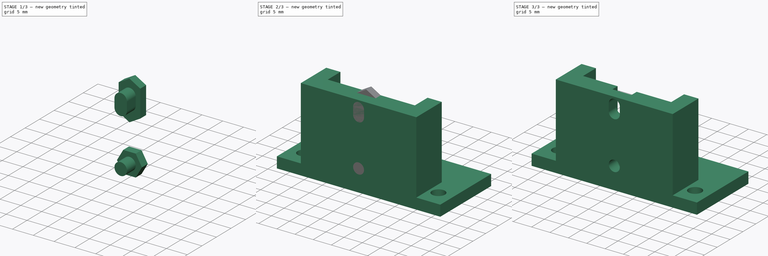
[diagram: build sequence overview — one tinted view per stage of 3, left to right]
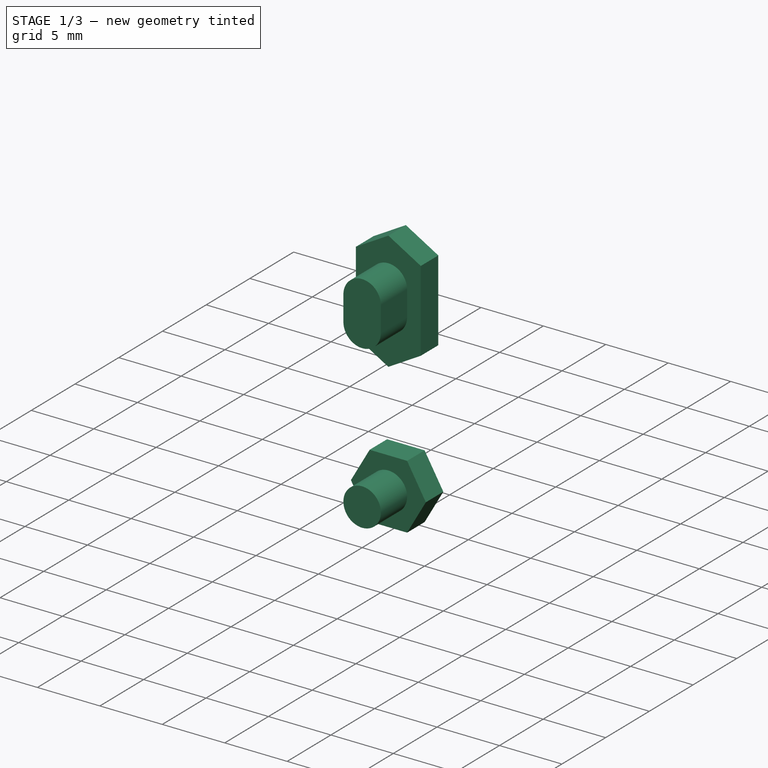
[diagram: stage 1 of 3 — iso view after this stage's code; geometry added in this stage tinted green]
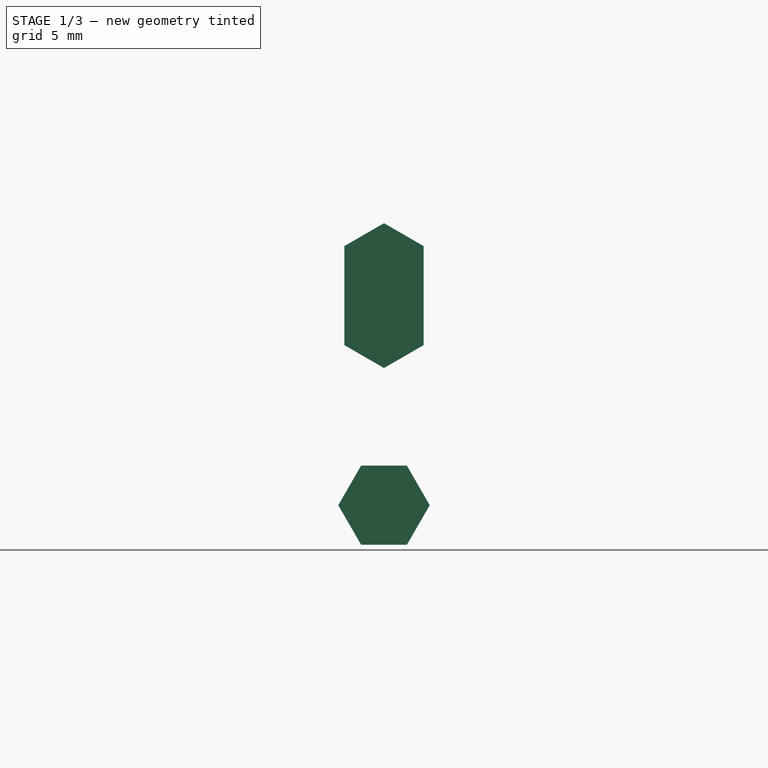
[diagram: stage 1 of 3 — front view after this stage's code; geometry added in this stage tinted green]
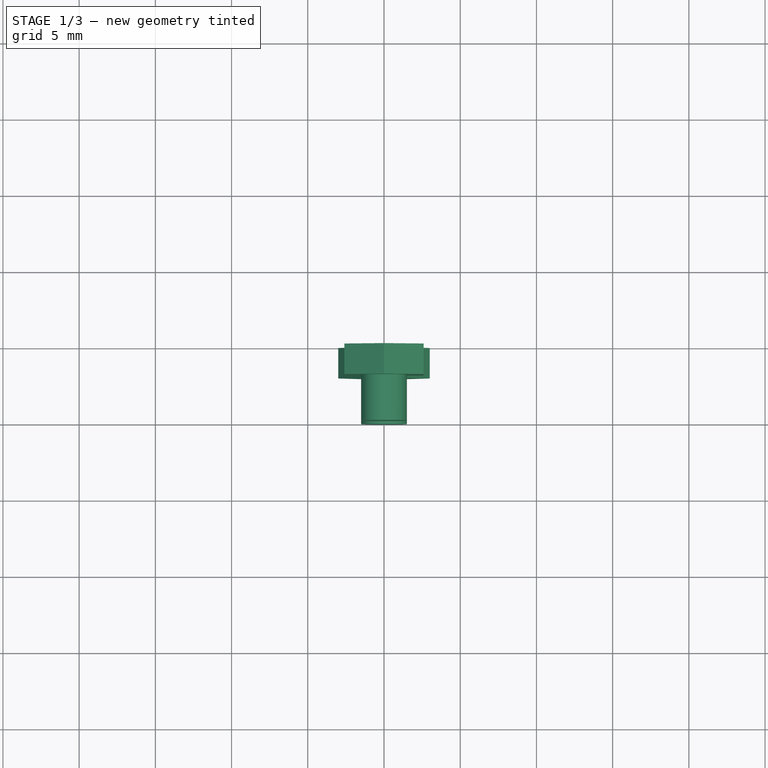
[diagram: stage 1 of 3 — top view after this stage's code; geometry added in this stage tinted green]
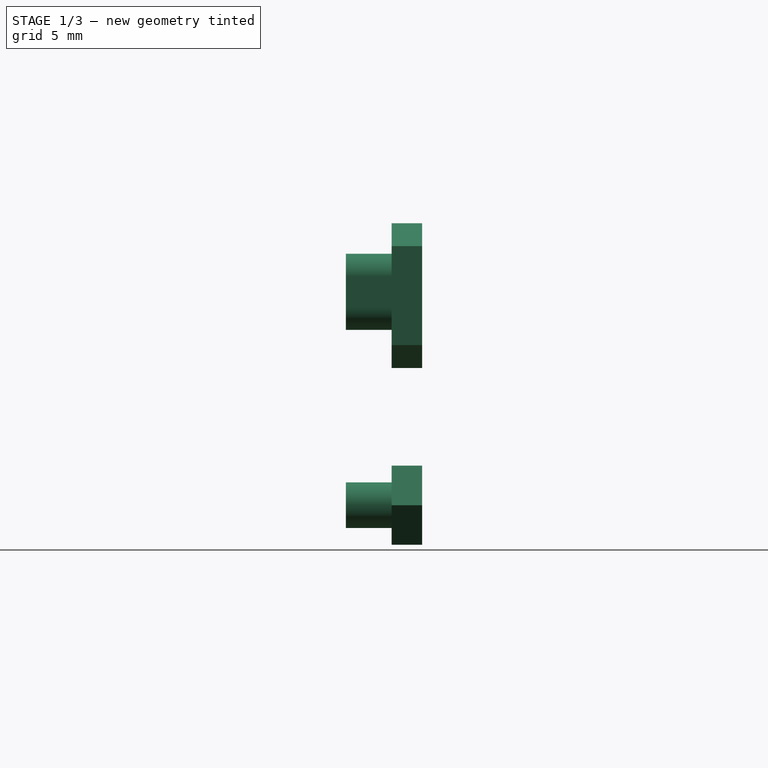
[diagram: stage 1 of 3 — right view after this stage's code; geometry added in this stage tinted green]
FCSTD DOCUMENT  (FreeCAD 0.16R6707 (Git))
Label: BeltMount
License: All rights reserved
LicenseURL: http://en.wikipedia.org/wiki/All_rights_reserved
objects: Sketcher::SketchObject×4, PartDesign::Pad×4, Part::MultiFuse×2, Part::Cut×1
note: 15 computed .brp shape members not serialized (recipe doc carries the construction recipe); baked Part::Feature solids carry a one-line shape summary decoded from their .brp

FEATURE [Sketcher::SketchObject] Sketch002
  Placement = pos=(0,-10,0) rot=(-1,0,0;4.71239rad)
  sketch-geometry (5):
    g0: Circle CenterX=0 CenterY=6 CenterZ=0 NormalX=0 NormalY=0 NormalZ=1 Radius=1.5
    g1: ArcOfCircle CenterX=0 CenterY=21 CenterZ=0 NormalX=0 NormalY=0 NormalZ=1 Radius=1.5 StartAngle=0 EndAngle=3.14159
    g2: ArcOfCircle CenterX=0 CenterY=19 CenterZ=0 NormalX=0 NormalY=0 NormalZ=1 Radius=1.5 StartAngle=3.14159 EndAngle=6.28319
    g3: LineSegment StartX=-1.5 StartY=21 StartZ=0 EndX=-1.5 EndY=19 EndZ=0
    g4: LineSegment StartX=1.5 StartY=21 StartZ=0 EndX=1.5 EndY=19 EndZ=0
  constraints (13):
    c: Tangent(g1,g4) = 1.5708
    c: Tangent(g1,g3) = -1.5708
    c: Tangent(g3,g2) = -1.5708
    c: Tangent(g4,g2) = 1.5708
    c: Vertical(g3)
    c: Equal(g1,g2)
    c: PointOnObject(g0,g-2)
    c: PointOnObject(g2,g-2)
    c: Radius(g0) = 1.5
    c: Equal(g0,g2)
    c: DistanceY(g-1,g0) = 6
    c: DistanceY(g0,g2) = 13
    c: DistanceY(g0,g1) = 15
FEATURE [Sketcher::SketchObject] Sketch003
  Placement = pos=(0,-5,0) rot=(0,0.707107,0.707107;3.14159rad)
  sketch-geometry (13):
    g0: LineSegment StartX=-1.5 StartY=3.40192 StartZ=0 EndX=1.5 EndY=3.40192 EndZ=0
    g1: LineSegment StartX=1.5 StartY=3.40192 StartZ=0 EndX=3 EndY=6 EndZ=0
    g2: LineSegment StartX=3 StartY=6 StartZ=0 EndX=1.5 EndY=8.59808 EndZ=0
    g3: LineSegment StartX=1.5 StartY=8.59808 StartZ=0 EndX=-1.5 EndY=8.59808 EndZ=0
    g4: LineSegment StartX=-1.5 StartY=8.59808 StartZ=0 EndX=-3 EndY=6 EndZ=0
    g5: LineSegment StartX=-3 StartY=6 StartZ=0 EndX=-1.5 EndY=3.40192 EndZ=0
    g6: Circle [constr] CenterX=0 CenterY=6 CenterZ=0 NormalX=0 NormalY=0 NormalZ=1 Radius=3
    g7: LineSegment StartX=2.59808 StartY=16.5 StartZ=0 EndX=2.59808 EndY=23 EndZ=0
    g8: LineSegment StartX=2.59808 StartY=23 StartZ=0 EndX=0 EndY=24.5 EndZ=0
    g9: LineSegment StartX=0 StartY=24.5 StartZ=0 EndX=-2.59808 EndY=23 EndZ=0
    g10: LineSegment StartX=-2.59808 StartY=23 StartZ=0 EndX=-2.59808 EndY=16.5 EndZ=0
    g11: LineSegment StartX=-2.59808 StartY=16.5 StartZ=0 EndX=1e-12 EndY=15 EndZ=0
    g12: LineSegment StartX=1e-12 StartY=15 StartZ=0 EndX=2.59808 EndY=16.5 EndZ=0
  constraints (34):
    c: Coincident(g0,g1)
    c: Coincident(g1,g2)
    c: Coincident(g2,g3)
    c: Coincident(g3,g4)
    c: Coincident(g4,g5)
    c: Coincident(g5,g0)
    c: Equal(g0, g1-g5) x5
    c: PointOnObject(g0,g6)
    c: PointOnObject(g1,g6)
    c: PointOnObject(g2,g6)
    c: PointOnObject(g3,g6)
    c: PointOnObject(g4,g6)
    c: PointOnObject(g5,g6)
    c: Coincident(g7,g8)
    c: Coincident(g8,g9)
    c: Coincident(g9,g10)
    c: Coincident(g10,g11)
    c: Coincident(g11,g12)
    c: Coincident(g12,g7)
    c: Vertical(g10)
    c: DistanceY(g7,g9) = 0
    c: Angle(g9,g8) = 2.0944
    c: PointOnObject(g8,g-2)
    c: Symmetric(g3,g2,g-2)
    c: Radius(g6) = 3
    c: DistanceY(g-1,g6) = 6
    c: Vertical(g7)
    c: Equal(g12,g11)
    c: Equal(g11,g9)
    c: Equal(g9,g8)
    c: Symmetric(g7,g10,g-2)
    c: DistanceX(g10,g7) = 5.19615
    c: DistanceY(g6,g11) = 9
    c: DistanceY(g-1,g9) = 23
FEATURE [PartDesign::Pad] Pad002  label="NutFlush"
  Length = 2
  Length2 = 100
  Placement = pos=(0,-5,0) rot=(0,0.707107,0.707107;3.14159rad)
  Reversed = true
  Sketch = -> Sketch003
  Type = 0
FEATURE [PartDesign::Pad] Pad003  label="Mount"
  Length = 5
  Length2 = 100
  Placement = pos=(0,-10,0) rot=(-1,0,0;4.71239rad)
  Reversed = true
  Sketch = -> Sketch002
  Type = 0
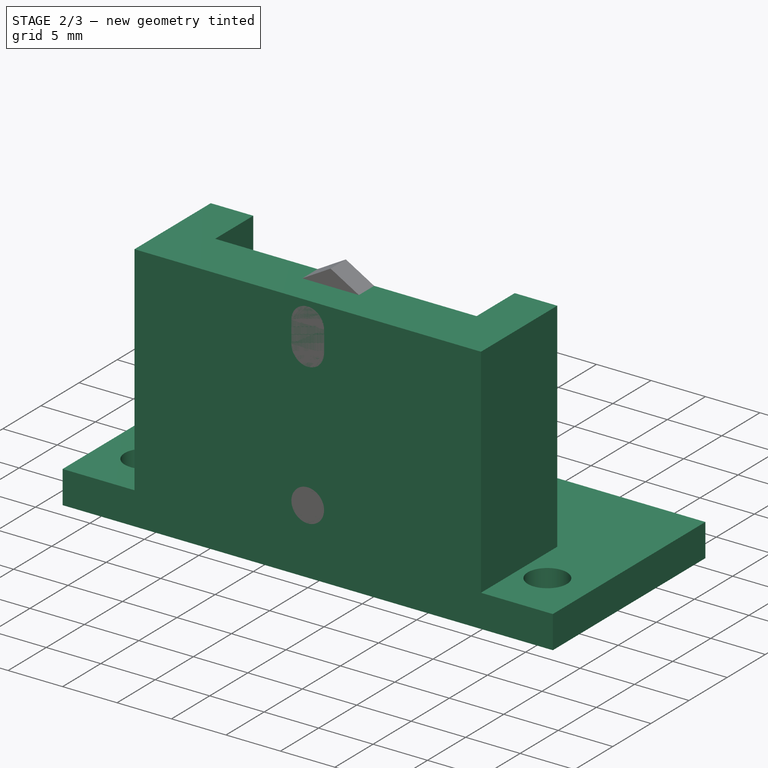
[diagram: stage 2 of 3 — iso view after this stage's code; geometry added in this stage tinted green]
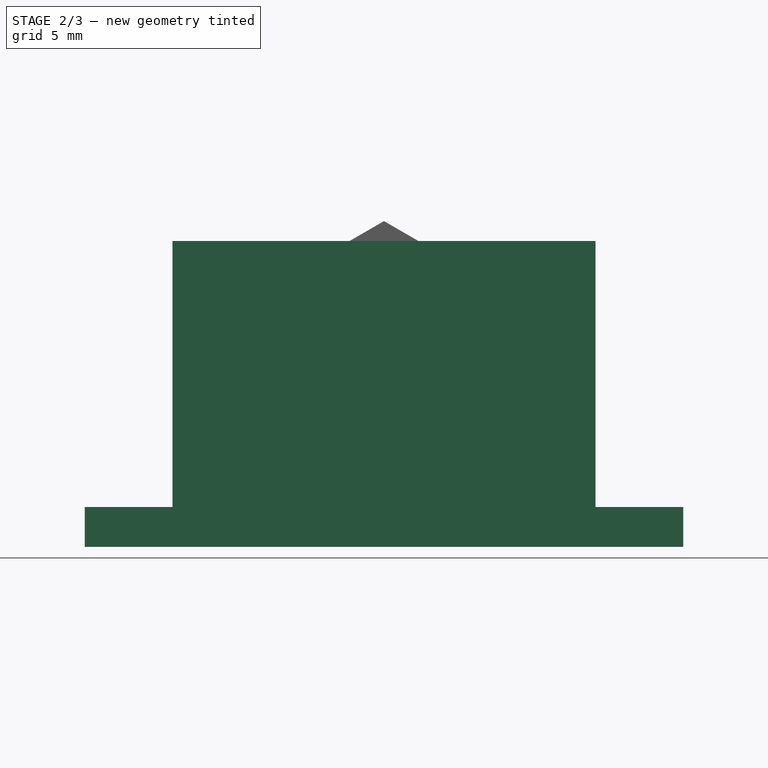
[diagram: stage 2 of 3 — front view after this stage's code; geometry added in this stage tinted green]
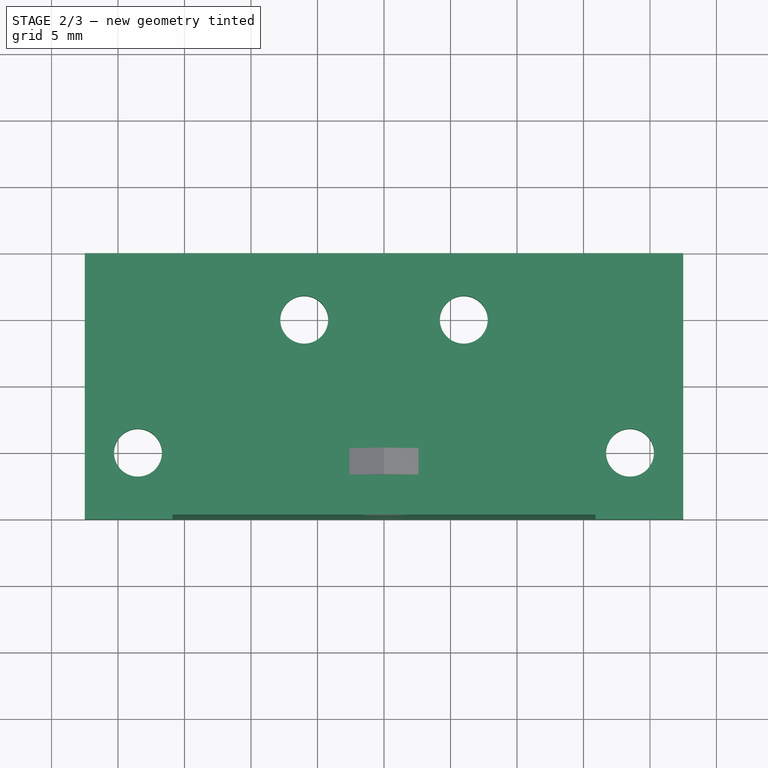
[diagram: stage 2 of 3 — top view after this stage's code; geometry added in this stage tinted green]
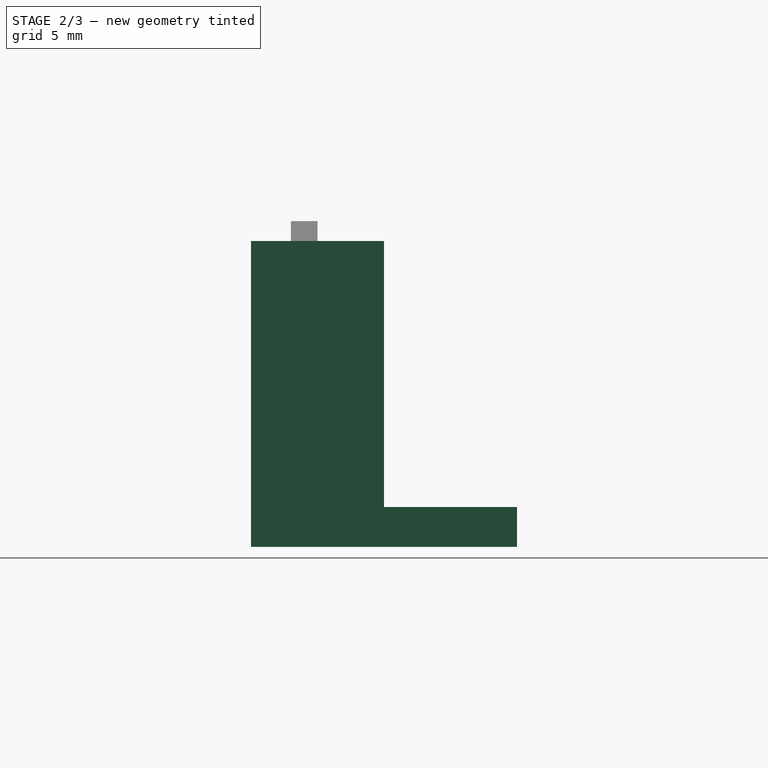
[diagram: stage 2 of 3 — right view after this stage's code; geometry added in this stage tinted green]
FEATURE [Sketcher::SketchObject] Sketch
  sketch-geometry (8):
    g0: LineSegment StartX=-22.5 StartY=10 StartZ=0 EndX=22.5 EndY=10 EndZ=0
    g1: LineSegment StartX=22.5 StartY=10 StartZ=0 EndX=22.5 EndY=-10 EndZ=0
    g2: LineSegment StartX=22.5 StartY=-10 StartZ=0 EndX=-22.5 EndY=-10 EndZ=0
    g3: LineSegment StartX=-22.5 StartY=-10 StartZ=0 EndX=-22.5 EndY=10 EndZ=0
    g4: Circle CenterX=-6 CenterY=5 CenterZ=0 NormalX=0 NormalY=0 NormalZ=1 Radius=1.8
    g5: Circle CenterX=6 CenterY=5 CenterZ=0 NormalX=0 NormalY=0 NormalZ=1 Radius=1.8
    g6: Circle CenterX=-18.5 CenterY=-5 CenterZ=0 NormalX=0 NormalY=0 NormalZ=1 Radius=1.8
    g7: Circle CenterX=18.5 CenterY=-5 CenterZ=0 NormalX=0 NormalY=0 NormalZ=1 Radius=1.8
  constraints (22):
    c: Coincident(g0,g1)
    c: Coincident(g1,g2)
    c: Coincident(g2,g3)
    c: Coincident(g3,g0)
    c: Horizontal(g0)
    c: Horizontal(g2)
    c: Vertical(g1)
    c: Vertical(g3)
    c: Symmetric(g0,g0,g-2)
    c: Symmetric(g0,g1,g-1)
    c: Radius(g4) = 1.8
    c: Equal(g4,g5)
    c: Symmetric(g4,g5,g-2)
    c: DistanceX(g4,g5) = 12
    c: DistanceY(g-1,g4) = 5
    c: DistanceY(g3,g3) = 20
    c: Equal(g5,g7)
    c: Equal(g7,g6)
    c: Symmetric(g7,g6,g-2)
    c: DistanceY(g6,g-1) = 5
    c: DistanceX(g6,g7) = 37
    c: DistanceX(g0,g0) = 45
FEATURE [PartDesign::Pad] Pad  label="Base"
  Length = 3
  Length2 = 100
  Sketch = -> Sketch
  Type = 0
FEATURE [Sketcher::SketchObject] Sketch001
  Placement = pos=(0,0,3) rot=(0,0,1;0rad)
  sketch-geometry (8):
    g0: LineSegment StartX=-12 StartY=0 StartZ=0 EndX=-15.9027 EndY=0 EndZ=0
    g1: LineSegment StartX=-15.9027 StartY=0 StartZ=0 EndX=-15.9027 EndY=-10 EndZ=0
    g2: LineSegment StartX=-15.9027 StartY=-10 StartZ=0 EndX=15.9027 EndY=-10 EndZ=0
    g3: LineSegment StartX=15.9027 StartY=-10 StartZ=0 EndX=15.9027 EndY=0 EndZ=0
    g4: LineSegment StartX=15.9027 StartY=0 StartZ=0 EndX=12 EndY=0 EndZ=0
    g5: LineSegment StartX=12 StartY=0 StartZ=0 EndX=12 EndY=-5 EndZ=0
    g6: LineSegment StartX=12 StartY=-5 StartZ=0 EndX=-12 EndY=-5 EndZ=0
    g7: LineSegment StartX=-12 StartY=-5 StartZ=0 EndX=-12 EndY=0 EndZ=0
  constraints (22):
    c: Horizontal(g0)
    c: Coincident(g0,g1)
    c: Coincident(g1,g2)
    c: Coincident(g2,g3)
    c: Vertical(g3)
    c: Coincident(g3,g4)
    c: Coincident(g4,g5)
    c: Vertical(g5)
    c: Coincident(g5,g6)
    c: Horizontal(g6)
    c: Coincident(g6,g7)
    c: Coincident(g7,g0)
    c: Vertical(g7)
    c: Vertical(g1)
    c: Horizontal(g2)
    c: Horizontal(g4)
    c: Symmetric(g0,g4,g-2)
    c: PointOnObject(g0,g-1)
    c: Equal(g0,g4)
    c: DistanceX(g0,g4) = 24
    c: DistanceY(g1,g-1) = 10
    c: DistanceY(g7,g7) = 5
FEATURE [PartDesign::Pad] Pad001  label="Ridge"
  Length = 20
  Length2 = 100
  Placement = pos=(0,0,3) rot=(0,0,1;0rad)
  Sketch = -> Sketch001
  Type = 0
FEATURE [Part::MultiFuse] Fusion001  label="CutBlock"
  Shapes = -> [Pad002,Pad003]
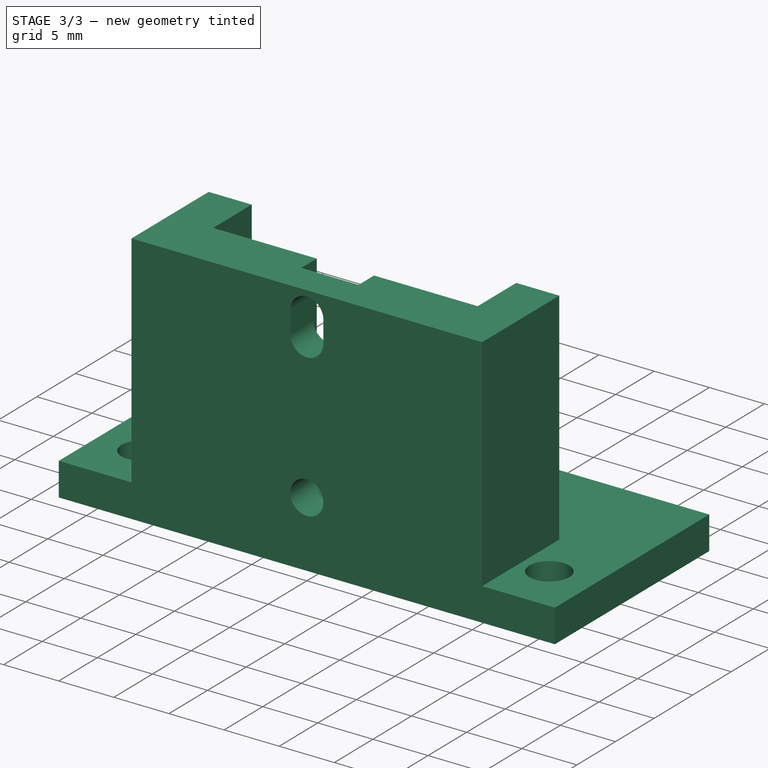
[diagram: stage 3 of 3 — iso view after this stage's code; geometry added in this stage tinted green]
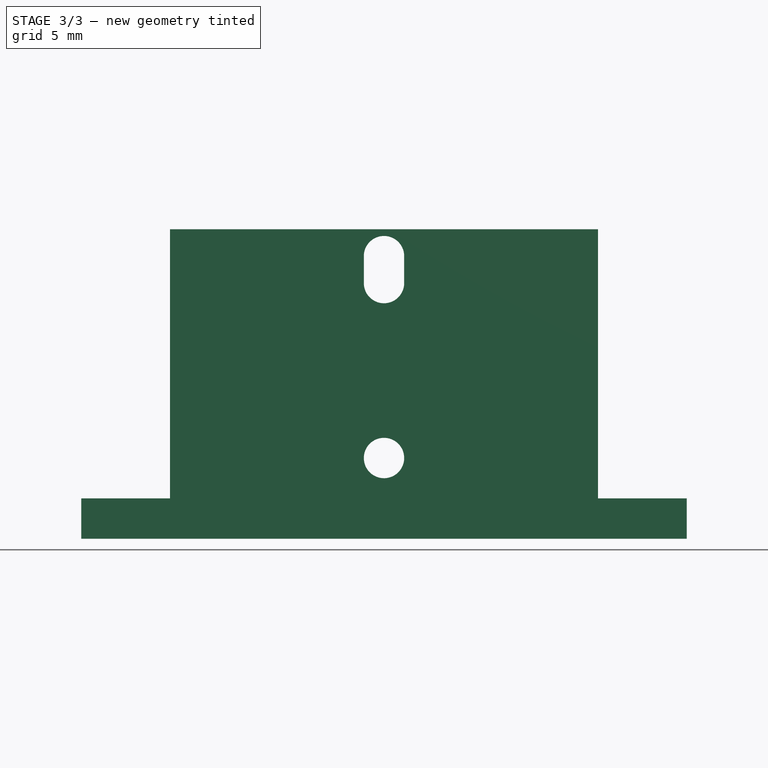
[diagram: stage 3 of 3 — front view after this stage's code; geometry added in this stage tinted green]
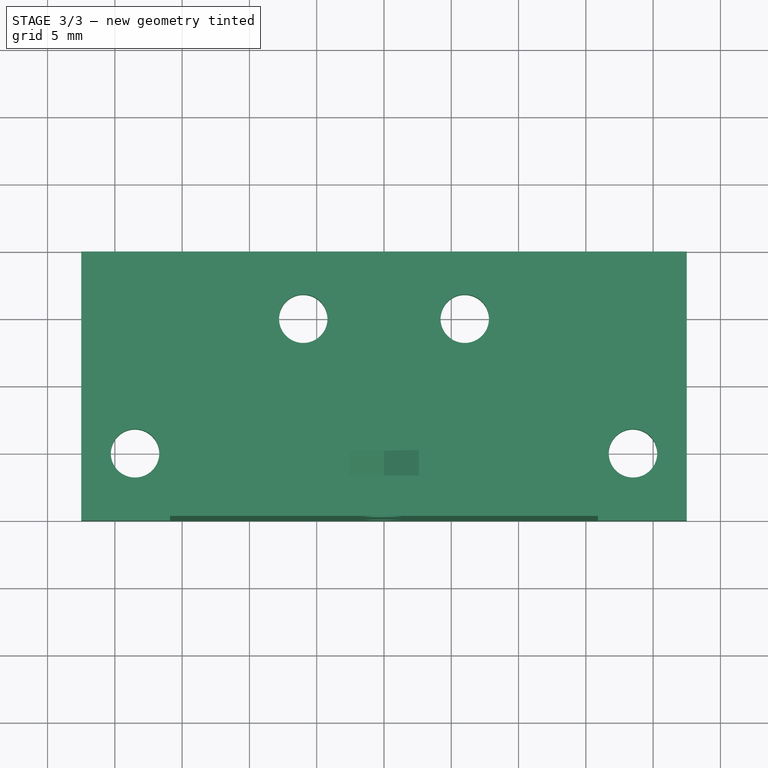
[diagram: stage 3 of 3 — top view after this stage's code; geometry added in this stage tinted green]
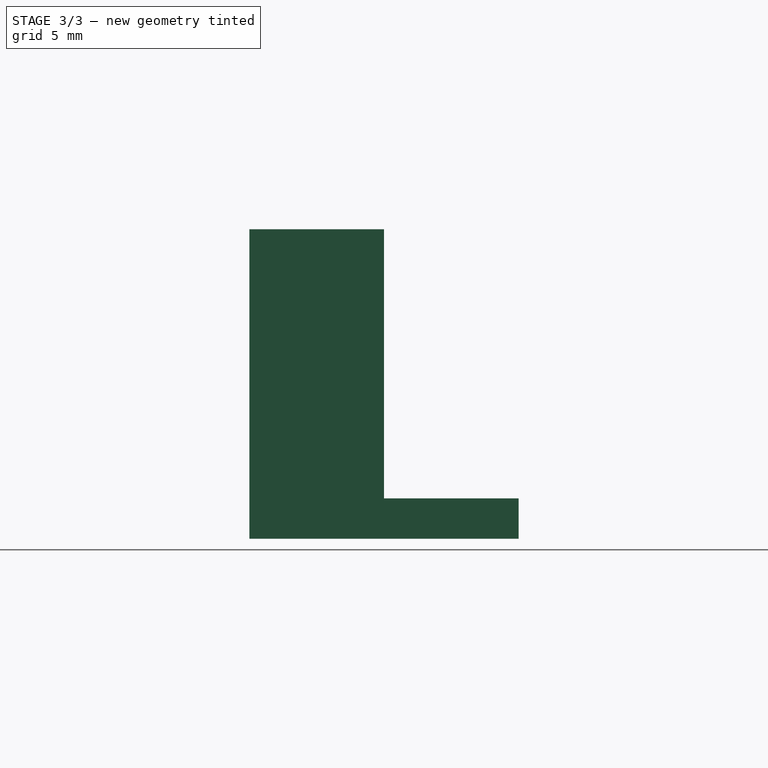
[diagram: stage 3 of 3 — right view after this stage's code; geometry added in this stage tinted green]
FEATURE [Part::MultiFuse] Fusion  label="BaseBlock"
  Shapes = -> [Pad001,Pad]
FEATURE [Part::Cut] Cut  label="Final"
  Base = -> Fusion
  Tool = -> Fusion001
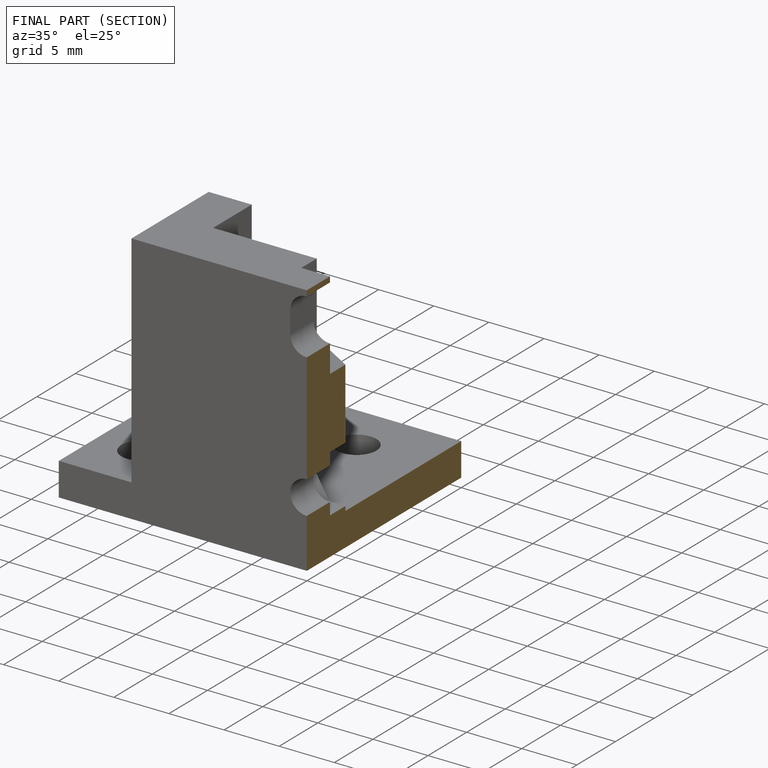
[diagram: finished part — half-section view (interior)]
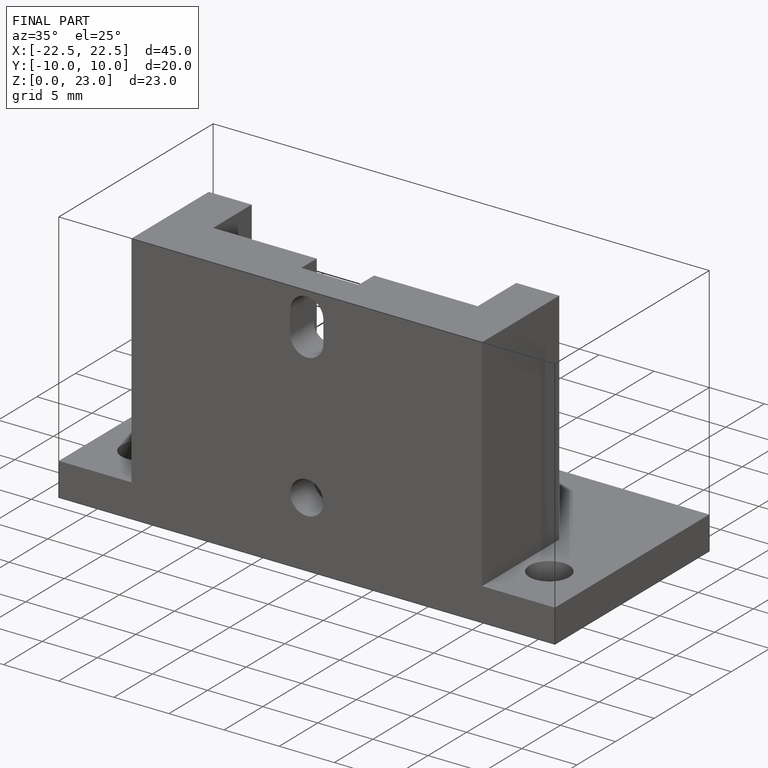
[diagram: finished part — iso view with bounding-box wireframe]
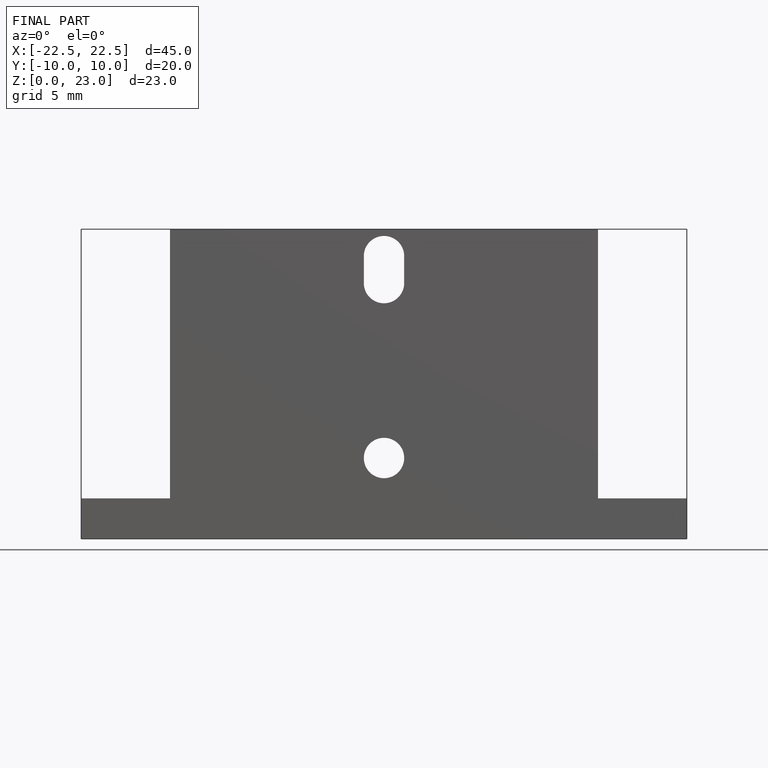
[diagram: finished part — front view with bounding-box wireframe]
